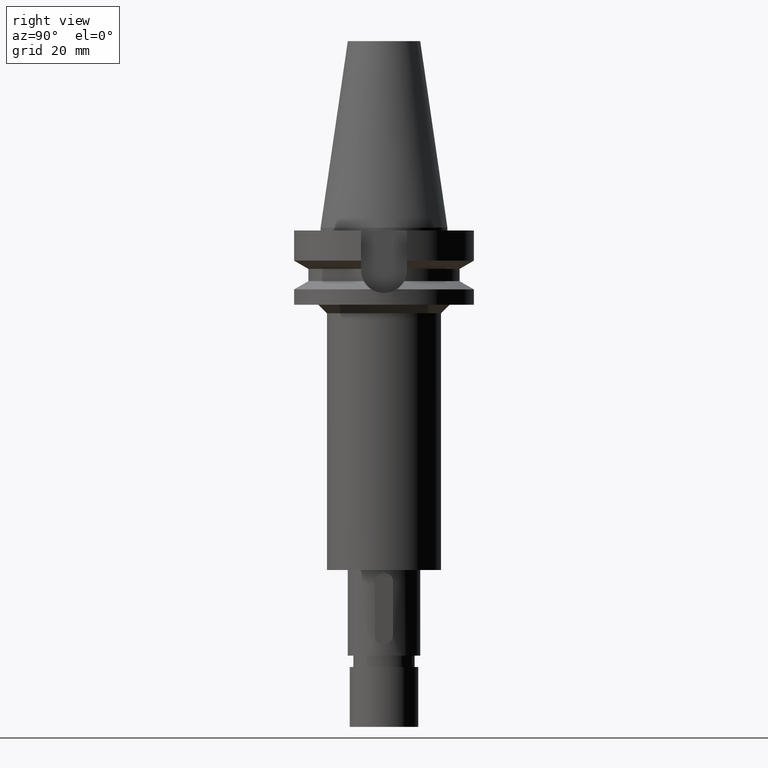
[diagram: clean part render]
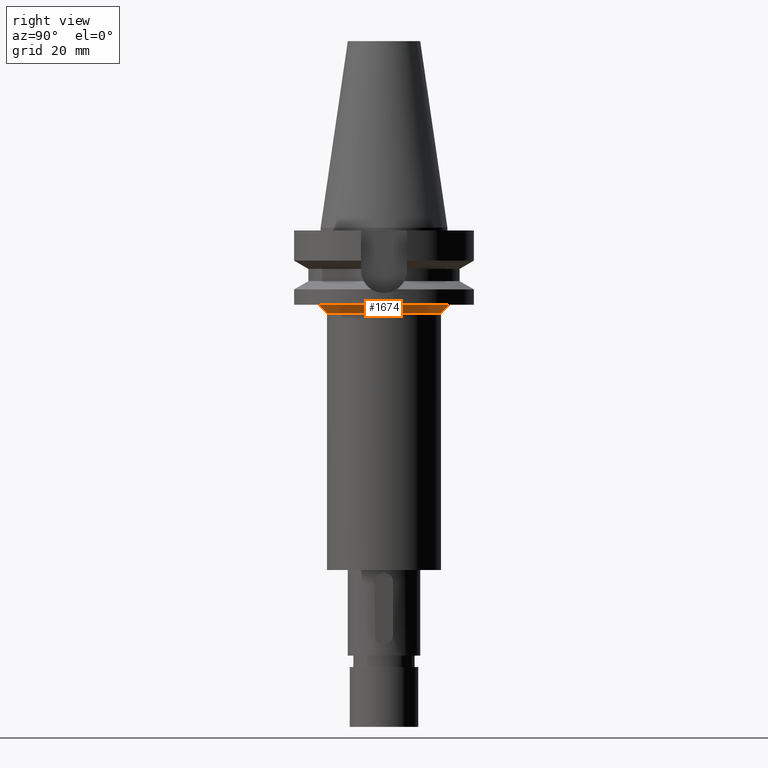
[diagram: same view with one face highlighted and labeled with its STEP entity id]
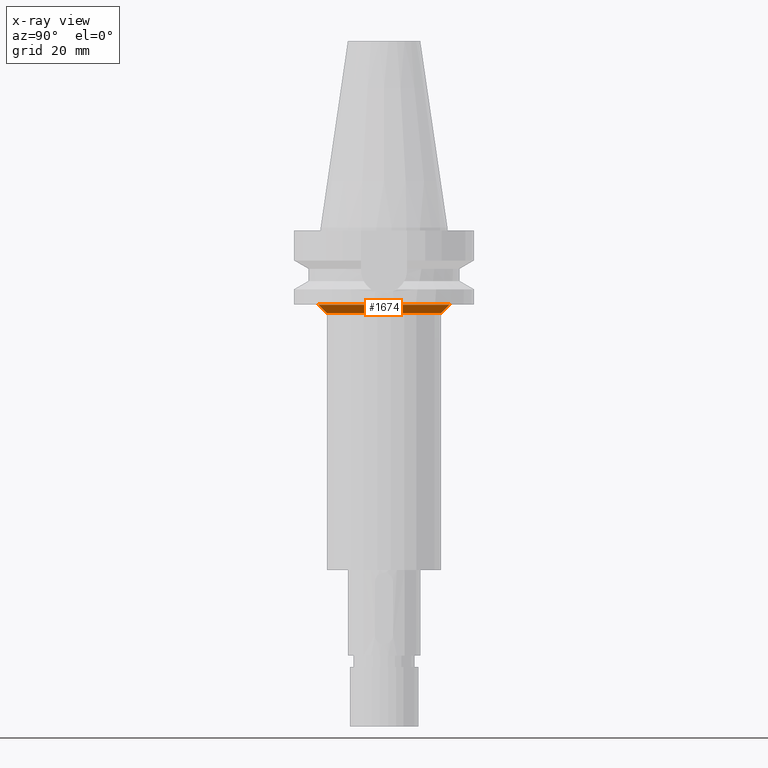
[diagram: x-ray of the same camera — body ghosted, the highlighted face saturated]
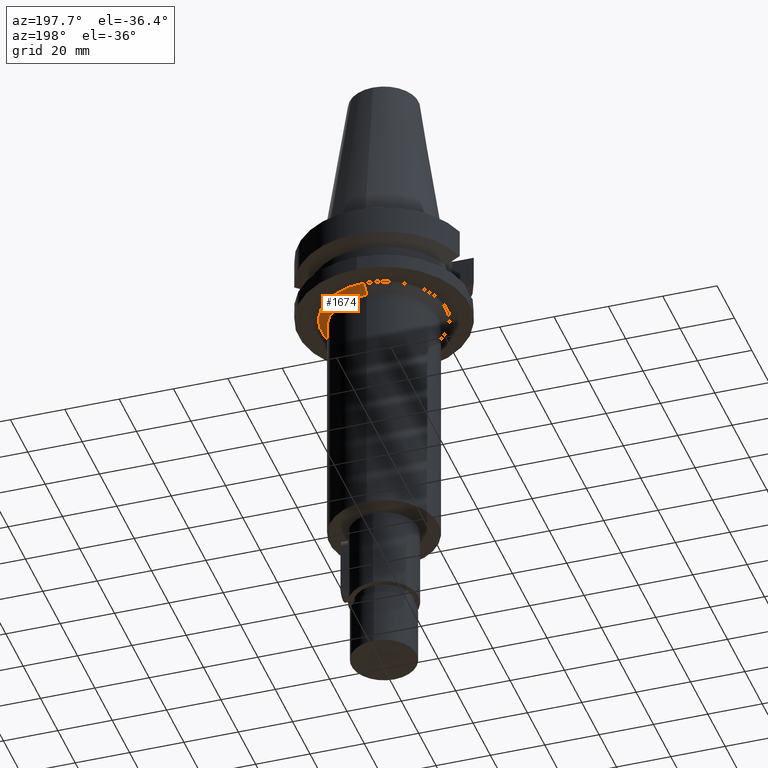
[diagram: same view with one face highlighted and labeled with its STEP entity id]
A machine part, right view. The second image highlights one B-rep face of the part: STEP entity #1674.
The next image is the same camera in x-ray: the body ghosted, the highlighted face saturated — about 0% of this face is hidden behind the body in this view.
A second angle (auxiliary view) of the same face is appended — the face is thin or edge-on in the first view.
In plain terms, the highlighted conical surface has half-angle 45 deg.
Its self-contained STEP definition (entity closure, byte-faithful):
#632=CARTESIAN_POINT('',(0.E0,0.E0,-2.7E1));
#633=DIRECTION('',(0.E0,0.E0,-1.E0));
#634=DIRECTION('',(0.E0,1.E0,0.E0));
#635=AXIS2_PLACEMENT_3D('',#632,#633,#634);
#648=DIRECTION('',(0.E0,-7.071067811865E-1,-7.071067811866E-1));
#649=VECTOR('',#648,4.242640687119E0);
#650=CARTESIAN_POINT('',(0.E0,2.3E1,-2.7E1));
#651=LINE('',#650,#649);
#655=CARTESIAN_POINT('',(0.E0,0.E0,-3.E1));
#656=DIRECTION('',(0.E0,0.E0,-1.E0));
#657=DIRECTION('',(0.E0,1.E0,0.E0));
#658=AXIS2_PLACEMENT_3D('',#655,#656,#657);
#663=DIRECTION('',(0.E0,7.071067811865E-1,-7.071067811865E-1));
#664=VECTOR('',#663,4.242640687119E0);
#665=CARTESIAN_POINT('',(0.E0,-2.3E1,-2.7E1));
#666=LINE('',#665,#664);
#1169=CARTESIAN_POINT('',(0.E0,2.3E1,-2.7E1));
#1170=CARTESIAN_POINT('',(0.E0,-2.3E1,-2.7E1));
#1171=VERTEX_POINT('',#1169);
#1172=VERTEX_POINT('',#1170);
#1173=CARTESIAN_POINT('',(0.E0,2.E1,-3.E1));
#1174=VERTEX_POINT('',#1173);
#1175=CARTESIAN_POINT('',(0.E0,-2.E1,-3.E1));
#1176=VERTEX_POINT('',#1175);
#1660=CARTESIAN_POINT('',(0.E0,0.E0,-2.85E1));
#1661=DIRECTION('',(0.E0,0.E0,1.E0));
#1662=DIRECTION('',(0.E0,1.E0,0.E0));
#1663=AXIS2_PLACEMENT_3D('',#1660,#1661,#1662);
#1664=CONICAL_SURFACE('',#1663,2.15E1,4.5E1);
#1666=ORIENTED_EDGE('',*,*,#1665,.T.);
#1668=ORIENTED_EDGE('',*,*,#1667,.T.);
#1670=ORIENTED_EDGE('',*,*,#1669,.F.);
#1671=ORIENTED_EDGE('',*,*,#1653,.F.);
#1672=EDGE_LOOP('',(#1666,#1668,#1670,#1671));
#1673=FACE_OUTER_BOUND('',#1672,.F.);
#636=CIRCLE('',#635,2.3E1);
#659=CIRCLE('',#658,2.E1);
#1653=EDGE_CURVE('',#1171,#1172,#636,.T.);
#1665=EDGE_CURVE('',#1171,#1174,#651,.T.);
#1667=EDGE_CURVE('',#1174,#1176,#659,.T.);
#1669=EDGE_CURVE('',#1172,#1176,#666,.T.);
#1674=ADVANCED_FACE('',(#1673),#1664,.T.);